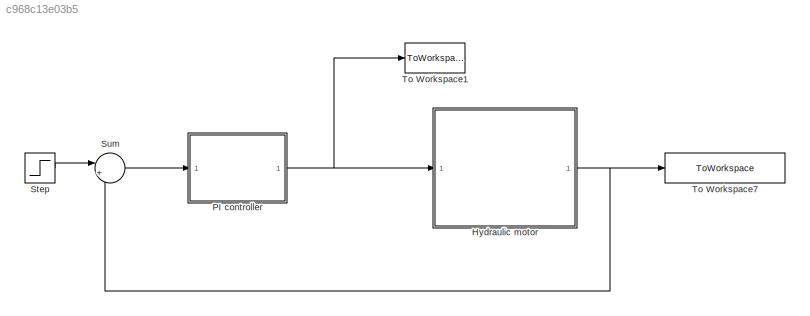
MODEL slx_c968c13e03b5
KIND model
CONFIG AbsTol = auto
CONFIG FixedStep = auto
CONFIG MaxStep = 0.001
CONFIG MinStep = auto
CONFIG RelTol = 1e-3
CONFIG SampleTimeConstraint = Unconstrained
CONFIG Solver = ode45
CONFIG SolverMode = Auto
CONFIG SolverName = ode45
CONFIG StartTime = 0.0
CONFIG StopTime = Maxt
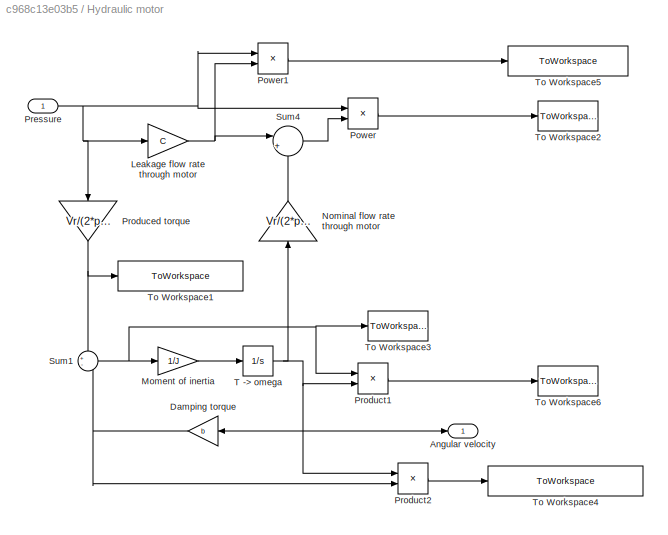
BLOCK [SubSystem] Hydraulic motor
  FunctionWithSeparateData = off
  MaskHideContents = off
  MinAlgLoopOccurrences = off
  Opaque = off
  Ports = [1, 1]
  PropExecContextOutsideSubsystem = off
  RTWSystemCode = Auto
  RequestExecContextInheritance = off
BLOCK [Outport] Hydraulic motor/Angular velocity
  IconDisplay = Port number
BLOCK [Gain] Hydraulic motor/Damping torque
  Gain = b
  OutDataTypeStr = Inherit: Inherit via internal rule
  ParamDataTypeStr = Inherit: Inherit via internal rule
  SaturateOnIntegerOverflow = off
BLOCK [Gain] Hydraulic motor/Leakage flow rate through motor
  Gain = C
  OutDataTypeStr = Inherit: Inherit via internal rule
  ParamDataTypeStr = Inherit: Inherit via internal rule
  SaturateOnIntegerOverflow = off
BLOCK [Gain] Hydraulic motor/Moment of inertia
  Gain = 1/J
  OutDataTypeStr = Inherit: Inherit via internal rule
  ParamDataTypeStr = Inherit: Inherit via internal rule
  SaturateOnIntegerOverflow = off
BLOCK [Gain] Hydraulic motor/Nominal flow rate through motor
  Gain = Vr/(2*pi)
  OutDataTypeStr = Inherit: Inherit via internal rule
  ParamDataTypeStr = Inherit: Inherit via internal rule
  SaturateOnIntegerOverflow = off
BLOCK [Product] Hydraulic motor/Power
  InputSameDT = off
  OutDataTypeStr = Inherit: Inherit via internal rule
  Ports = [2, 1]
  RndMeth = Floor
  SaturateOnIntegerOverflow = off
BLOCK [Product] Hydraulic motor/Power1
  InputSameDT = off
  OutDataTypeStr = Inherit: Inherit via internal rule
  Ports = [2, 1]
  RndMeth = Floor
  SaturateOnIntegerOverflow = off
BLOCK [Inport] Hydraulic motor/Pressure
  IconDisplay = Port number
BLOCK [Gain] Hydraulic motor/Produced torque
  Gain = Vr/(2*pi)
  OutDataTypeStr = Inherit: Inherit via internal rule
  ParamDataTypeStr = Inherit: Inherit via internal rule
  SaturateOnIntegerOverflow = off
BLOCK [Product] Hydraulic motor/Product1
  InputSameDT = off
  OutDataTypeStr = Inherit: Inherit via internal rule
  Ports = [2, 1]
  RndMeth = Floor
  SaturateOnIntegerOverflow = off
BLOCK [Product] Hydraulic motor/Product2
  InputSameDT = off
  OutDataTypeStr = Inherit: Inherit via internal rule
  Ports = [2, 1]
  RndMeth = Floor
  SaturateOnIntegerOverflow = off
BLOCK [Sum] Hydraulic motor/Sum1
  IconShape = round
  InputSameDT = off
  Inputs = +-
  OutDataTypeStr = Inherit: Inherit via internal rule
  Ports = [2, 1]
  SaturateOnIntegerOverflow = off
BLOCK [Sum] Hydraulic motor/Sum4
  IconShape = round
  InputSameDT = off
  Inputs = |++
  OutDataTypeStr = Inherit: Inherit via internal rule
  Ports = [2, 1]
  SaturateOnIntegerOverflow = off
BLOCK [Integrator] Hydraulic motor/T -> omega
  Ports = [1, 1]
BLOCK [ToWorkspace] Hydraulic motor/To Workspace1
  FixptAsFi = on
  MaxDataPoints = inf
  Ports = [1]
  SampleTime = -1
  SaveFormat = Timeseries
  VariableName = torque_hydraulic
BLOCK [ToWorkspace] Hydraulic motor/To Workspace2
  FixptAsFi = on
  MaxDataPoints = inf
  Ports = [1]
  SampleTime = -1
  SaveFormat = Timeseries
  VariableName = power_in
BLOCK [ToWorkspace] Hydraulic motor/To Workspace3
  FixptAsFi = on
  MaxDataPoints = inf
  Ports = [1]
  SampleTime = -1
  SaveFormat = Timeseries
  VariableName = torque_out
BLOCK [ToWorkspace] Hydraulic motor/To Workspace4
  FixptAsFi = on
  MaxDataPoints = inf
  Ports = [1]
  SampleTime = -1
  SaveFormat = Timeseries
  VariableName = power_loss_hydromechanical
BLOCK [ToWorkspace] Hydraulic motor/To Workspace5
  FixptAsFi = on
  MaxDataPoints = inf
  Ports = [1]
  SampleTime = -1
  SaveFormat = Timeseries
  VariableName = power_loss_volumetric
BLOCK [ToWorkspace] Hydraulic motor/To Workspace6
  FixptAsFi = on
  MaxDataPoints = inf
  Ports = [1]
  SampleTime = -1
  SaveFormat = Timeseries
  VariableName = power_out
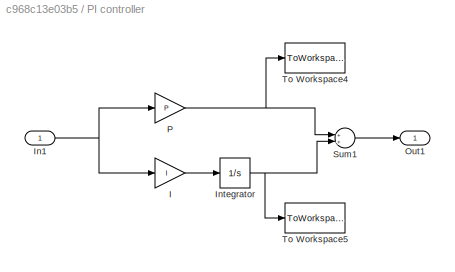
BLOCK [SubSystem] PI controller
  FunctionWithSeparateData = off
  MaskHideContents = off
  MinAlgLoopOccurrences = off
  Opaque = off
  Ports = [1, 1]
  PropExecContextOutsideSubsystem = off
  RTWSystemCode = Auto
  RequestExecContextInheritance = off
BLOCK [Gain] PI controller/I
  Gain = I
  OutDataTypeStr = Inherit: Inherit via internal rule
  ParamDataTypeStr = Inherit: Inherit via internal rule
  SaturateOnIntegerOverflow = off
BLOCK [Inport] PI controller/In1
  IconDisplay = Port number
BLOCK [Integrator] PI controller/Integrator
  Ports = [1, 1]
BLOCK [Outport] PI controller/Out1
  IconDisplay = Port number
BLOCK [Gain] PI controller/P
  Gain = P
  OutDataTypeStr = Inherit: Inherit via internal rule
  ParamDataTypeStr = Inherit: Inherit via internal rule
  SaturateOnIntegerOverflow = off
BLOCK [Sum] PI controller/Sum1
  InputSameDT = off
  OutDataTypeStr = Inherit: Inherit via internal rule
  Ports = [2, 1]
  SaturateOnIntegerOverflow = off
BLOCK [ToWorkspace] PI controller/To Workspace4
  FixptAsFi = on
  MaxDataPoints = inf
  Ports = [1]
  SampleTime = -1
  SaveFormat = Timeseries
  VariableName = proportional
BLOCK [ToWorkspace] PI controller/To Workspace5
  FixptAsFi = on
  MaxDataPoints = inf
  Ports = [1]
  SampleTime = -1
  SaveFormat = Timeseries
  VariableName = integral
BLOCK [Step] Step
  After = target_angular_velocity
  SampleTime = 0
  Time = 0
BLOCK [Sum] Sum
  IconShape = round
  InputSameDT = off
  Inputs = |+-
  OutDataTypeStr = Inherit: Inherit via internal rule
  Ports = [2, 1]
  SaturateOnIntegerOverflow = off
BLOCK [ToWorkspace] To Workspace1
  FixptAsFi = on
  MaxDataPoints = inf
  Ports = [1]
  SampleTime = -1
  SaveFormat = Timeseries
  VariableName = control
BLOCK [ToWorkspace] To Workspace7
  FixptAsFi = on
  MaxDataPoints = inf
  Ports = [1]
  SampleTime = -1
  SaveFormat = Timeseries
  VariableName = motor_angular_velocity
NET Hydraulic motor/Damping torque:1 -> Hydraulic motor/Product2:2, Hydraulic motor/Sum1:2
NET Hydraulic motor/Leakage flow rate through motor:1 -> Hydraulic motor/Power1:2, Hydraulic motor/Sum4:1
LINE Hydraulic motor/Moment of inertia:1 -> Hydraulic motor/T -> omega:1
LINE Hydraulic motor/Nominal flow rate through motor:1 -> Hydraulic motor/Sum4:2
LINE Hydraulic motor/Power1:1 -> Hydraulic motor/To Workspace5:1
LINE Hydraulic motor/Power:1 -> Hydraulic motor/To Workspace2:1
NET Hydraulic motor/Pressure:1 -> Hydraulic motor/Leakage flow rate through motor:1, Hydraulic motor/Power1:1, Hydraulic motor/Power:1, Hydraulic motor/Produced torque:1
NET Hydraulic motor/Produced torque:1 -> Hydraulic motor/Sum1:1, Hydraulic motor/To Workspace1:1
LINE Hydraulic motor/Product1:1 -> Hydraulic motor/To Workspace6:1
LINE Hydraulic motor/Product2:1 -> Hydraulic motor/To Workspace4:1
NET Hydraulic motor/Sum1:1 -> Hydraulic motor/Moment of inertia:1, Hydraulic motor/Product1:1, Hydraulic motor/To Workspace3:1
LINE Hydraulic motor/Sum4:1 -> Hydraulic motor/Power:2
NET Hydraulic motor/T -> omega:1 -> Hydraulic motor/Angular velocity:1, Hydraulic motor/Damping torque:1, Hydraulic motor/Nominal flow rate through motor:1, Hydraulic motor/Product1:2, Hydraulic motor/Product2:1
NET Hydraulic motor:1 -> Sum:2, To Workspace7:1
LINE PI controller/I:1 -> PI controller/Integrator:1
NET PI controller/In1:1 -> PI controller/I:1, PI controller/P:1
NET PI controller/Integrator:1 -> PI controller/Sum1:2, PI controller/To Workspace5:1
NET PI controller/P:1 -> PI controller/Sum1:1, PI controller/To Workspace4:1
LINE PI controller/Sum1:1 -> PI controller/Out1:1
NET PI controller:1 -> Hydraulic motor:1, To Workspace1:1
LINE Step:1 -> Sum:1
LINE Sum:1 -> PI controller:1
note: NET lines group one-source signal fan-out (src -> all destinations, sorted); 1:1 wires keep LINE
